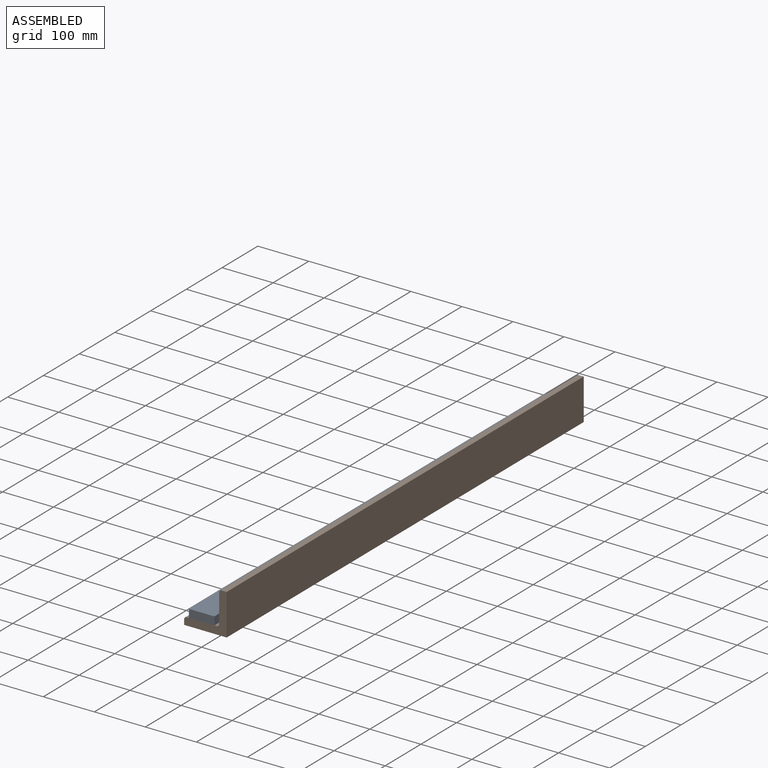
[diagram: assembled view]
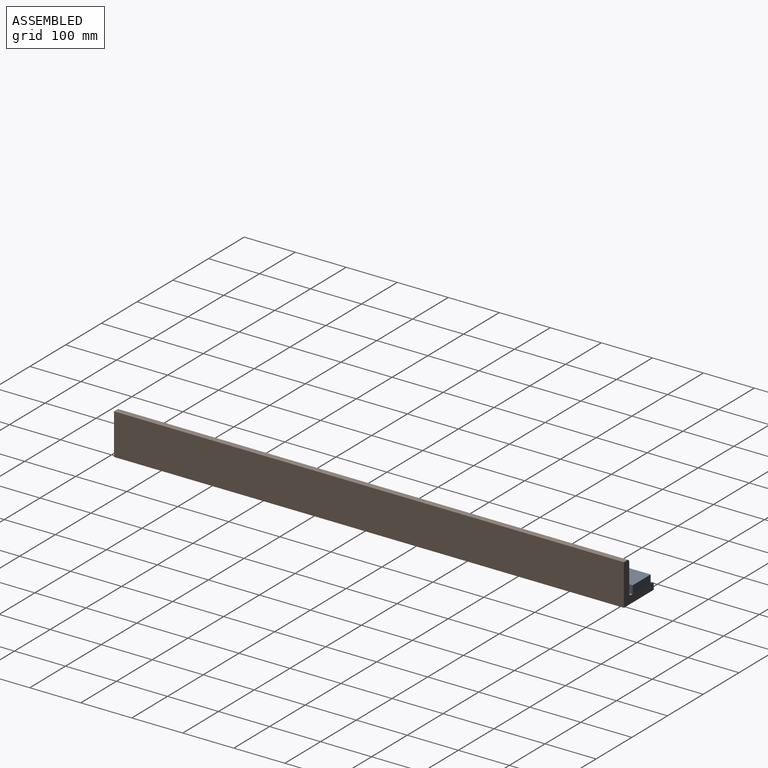
[diagram: assembled view, second angle]
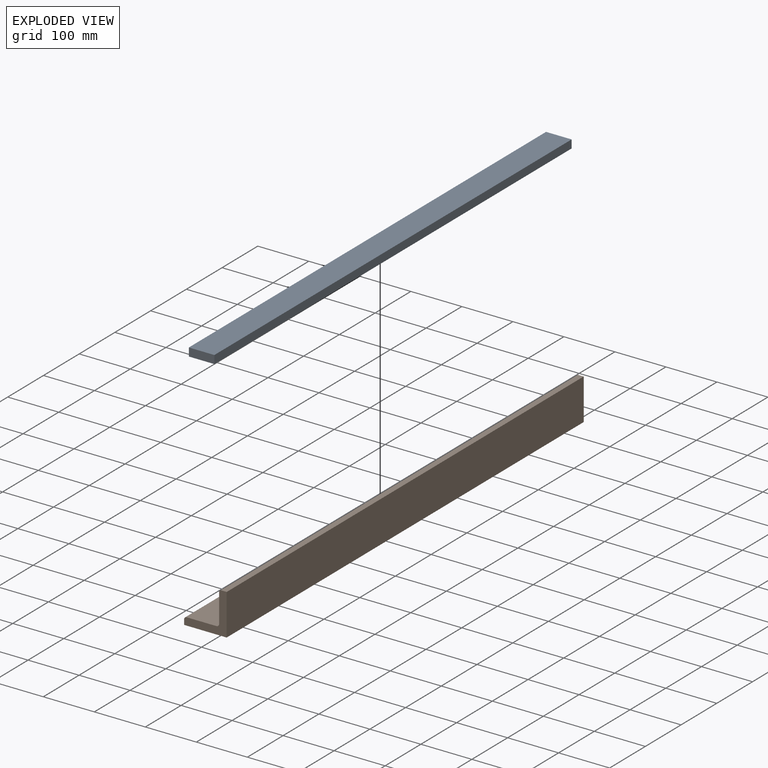
[diagram: exploded view]
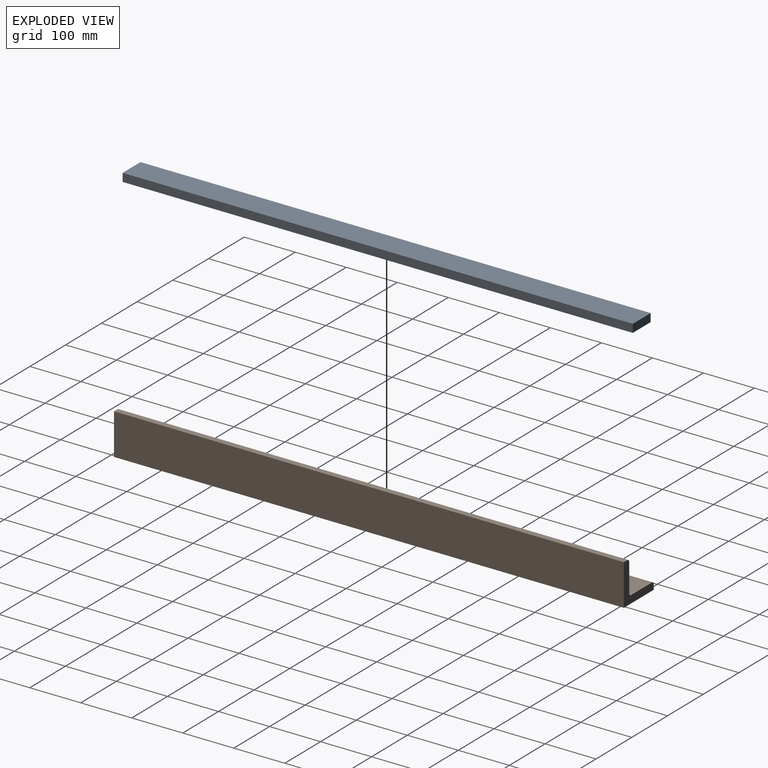
[diagram: exploded view, second angle]
ASSEMBLY  parts=2 mates=2
PART A: 6 faces, bbox 50x1000x16 mm
  f0: plane 1000x16.05mm, normal (-1,0,0), area 16045.3mm2, adj f1,f3,f4,f5
  f1: plane 1000x50.04mm, normal (0,0,-1), area 50043.8mm2, adj f0,f2,f4,f5
  f2: plane 1000x16.05mm, normal (1,0,0), area 16045.3mm2, adj f1,f3,f4,f5
  f3: plane 1000x50.04mm, normal (0,0,1), area 50043.8mm2, adj f0,f2,f4,f5
  f4: plane 50.04x16.05mm, normal (0,1,0), area 803mm2, adj f0,f1,f2,f3
  f5: plane 50.04x16.05mm, normal (0,-1,0), area 803mm2, adj f0,f1,f2,f3
PART B: 11 faces, bbox 83.5x999.4x80.7 mm
  f0: plane 999.44x9.8mm, normal (-1,0,0), area 9791.6mm2, adj f1,f6,f9,f10
  f1: plane 999.44x83.46mm, normal (0,0,-1), area 83415.6mm2, adj f0,f2,f6,f10
  f2: plane 999.44x80.73mm, normal (1,0,0), area 80687.8mm2, adj f1,f3,f6,f10
  f3: plane 999.44x9.87mm, normal (0,0,1), area 9868.8mm2, adj f2,f6,f7,f10
  f4: plane 999.44x55.82mm, normal (-1,0,0), area 55792.2mm2, adj f6,f7,f8,f10
  f5: plane 999.44x58.59mm, normal (0,0,1), area 58555.1mm2, adj f6,f8,f9,f10
  f6: plane 83.46x80.73mm, normal (0,-1,0), area 2213.4mm2, adj f0,f1,f2,f3,f4,f5,f7,f8
  f7: cylinder r=5mm len=999.44mm, axis (0,1,0), area 7849.6mm2, adj f3,f4,f6,f10
  f8: cylinder r=5mm len=999.44mm, axis (0,-1,0), area 7849.6mm2, adj f4,f5,f6,f10
  f9: cylinder r=5mm len=999.44mm, axis (0,1,0), area 7849.6mm2, adj f0,f5,f6,f10
  f10: plane 83.46x80.73mm, normal (0,1,0), area 2213.4mm2, adj f0,f1,f2,f3,f4,f5,f7,f8
PLACE A t=(756.56,-773.38,1209.38)mm
PLACE B t=(-299.99,-547.98,176.44)mm
MATE planar B.f5 <-> A.f1  axis (0,0,1) through (781.59,-773.38,1209.38)mm
MATE parallel A.f5 <-> B.f9  axis (0,-1,0) through (756.56,-773.38,1209.38)mm
